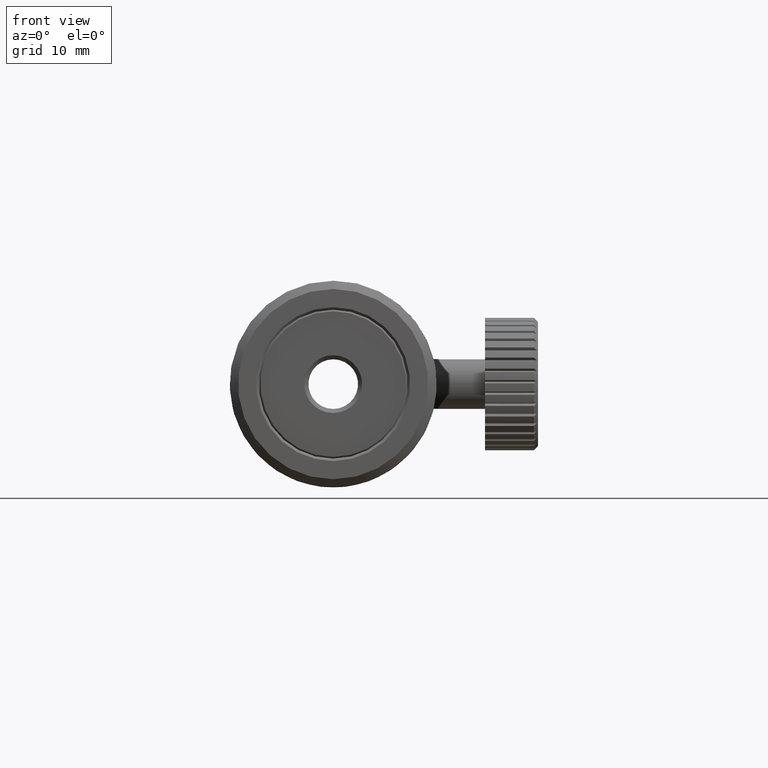
[diagram: clean part render]
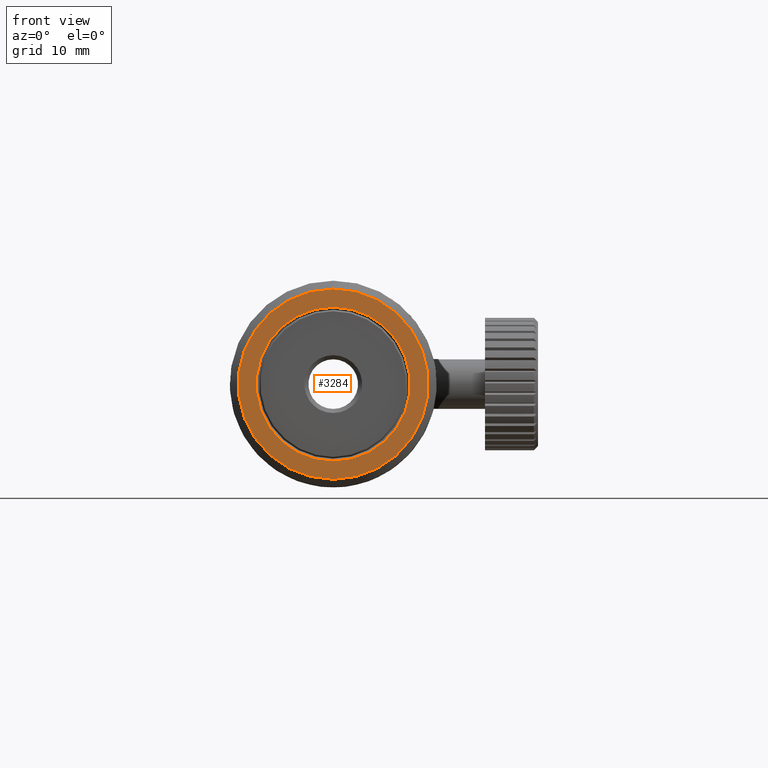
[diagram: same view with one face highlighted and labeled with its STEP entity id]
A machine part, front view. The second image highlights one B-rep face of the part: STEP entity #3284.
In plain terms, the highlighted planar face has unit normal (0, 1, 0).
Its self-contained STEP definition (entity closure, byte-faithful):
#521 = CIRCLE ( 'NONE', #3718, 9.299999999999988300 ) ;
#522 = CIRCLE ( 'NONE', #3719, 11.49999999999996100 ) ;
#1248 = CARTESIAN_POINT ( 'NONE',  ( -6.149801035848838600, -7.112444597380680900, 9.299999999999984700 ) ) ;
#1249 = CARTESIAN_POINT ( 'NONE',  ( -6.149801035848838600, -7.112444597380680900, 11.49999999999995700 ) ) ;
#1354 = CARTESIAN_POINT ( 'NONE',  ( -6.149801035848838600, -7.112444597380680900, -3.686287386450715100E-015 ) ) ;
#1355 = DIRECTION ( 'NONE',  ( 0.0000000000000000000, 1.000000000000000000, 0.0000000000000000000 ) ) ;
#1356 = DIRECTION ( 'NONE',  ( 0.0000000000000000000, 0.0000000000000000000, 1.000000000000000000 ) ) ;
#1357 = CARTESIAN_POINT ( 'NONE',  ( -6.149801035848838600, -7.112444597380680900, -3.686287386450715100E-015 ) ) ;
#1358 = DIRECTION ( 'NONE',  ( -0.0000000000000000000, -1.000000000000000000, -0.0000000000000000000 ) ) ;
#1359 = DIRECTION ( 'NONE',  ( 0.0000000000000000000, 0.0000000000000000000, 1.000000000000000000 ) ) ;
#1807 = ORIENTED_EDGE ( 'NONE', *, *, #2178, .T. ) ;
#1808 = ORIENTED_EDGE ( 'NONE', *, *, #2179, .T. ) ;
#2178 = EDGE_CURVE ( 'NONE', #2562, #2562, #521, .T. ) ;
#2179 = EDGE_CURVE ( 'NONE', #2563, #2563, #522, .T. ) ;
#2300 = AXIS2_PLACEMENT_3D ( 'NONE', #4097, #4101, #4102 ) ;
#2562 = VERTEX_POINT ( 'NONE', #1248 ) ;
#2563 = VERTEX_POINT ( 'NONE', #1249 ) ;
#3284 = ADVANCED_FACE ( 'NONE', ( #3615, #3612 ), #4099, .F. ) ;
#3612 = FACE_OUTER_BOUND ( 'NONE', #4797, .T. ) ;
#3615 = FACE_BOUND ( 'NONE', #4798, .T. ) ;
#3718 = AXIS2_PLACEMENT_3D ( 'NONE', #1354, #1355, #1356 ) ;
#3719 = AXIS2_PLACEMENT_3D ( 'NONE', #1357, #1358, #1359 ) ;
#4097 = CARTESIAN_POINT ( 'NONE',  ( -6.149801035848838600, -7.112444597380680900, -3.686287386450715100E-015 ) ) ;
#4099 = PLANE ( 'NONE',  #2300 ) ;
#4101 = DIRECTION ( 'NONE',  ( 0.0000000000000000000, 1.000000000000000000, 0.0000000000000000000 ) ) ;
#4102 = DIRECTION ( 'NONE',  ( 0.0000000000000000000, -0.0000000000000000000, 1.000000000000000000 ) ) ;
#4797 = EDGE_LOOP ( 'NONE', ( #1808 ) ) ;
#4798 = EDGE_LOOP ( 'NONE', ( #1807 ) ) ;